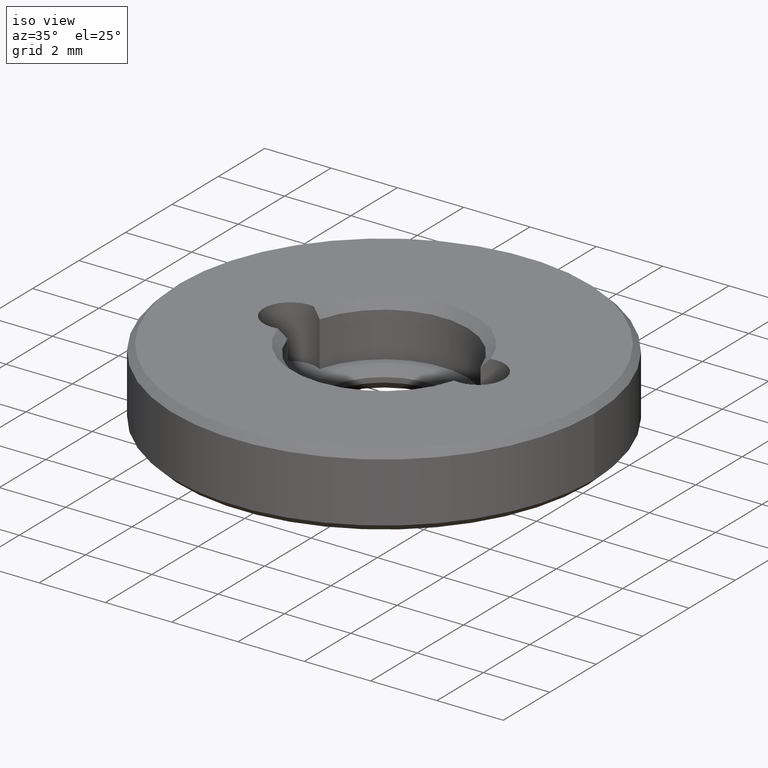
[diagram: clean part render]
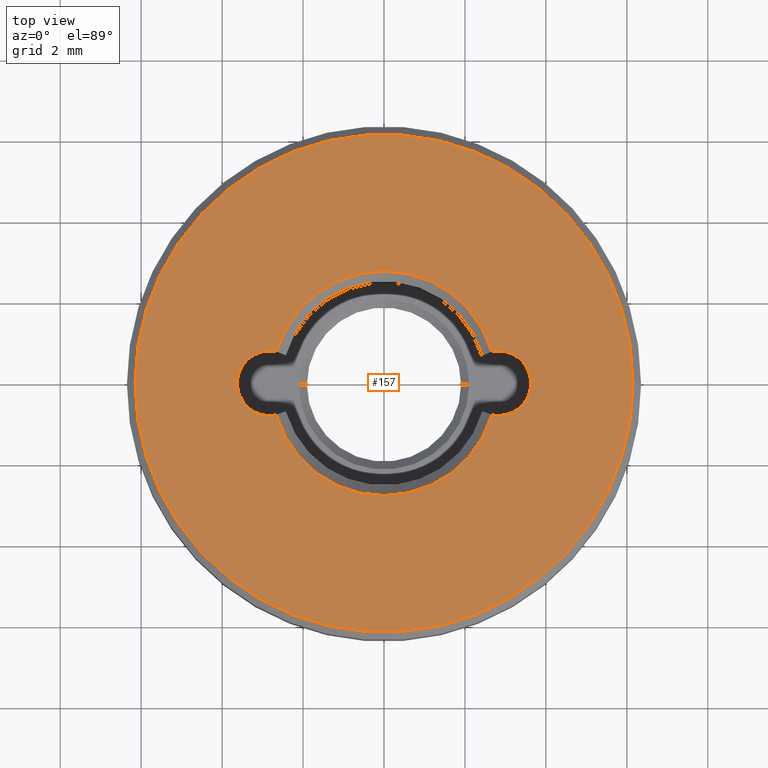
[diagram: tour spotlight — one face highlighted and labeled with its STEP entity id]
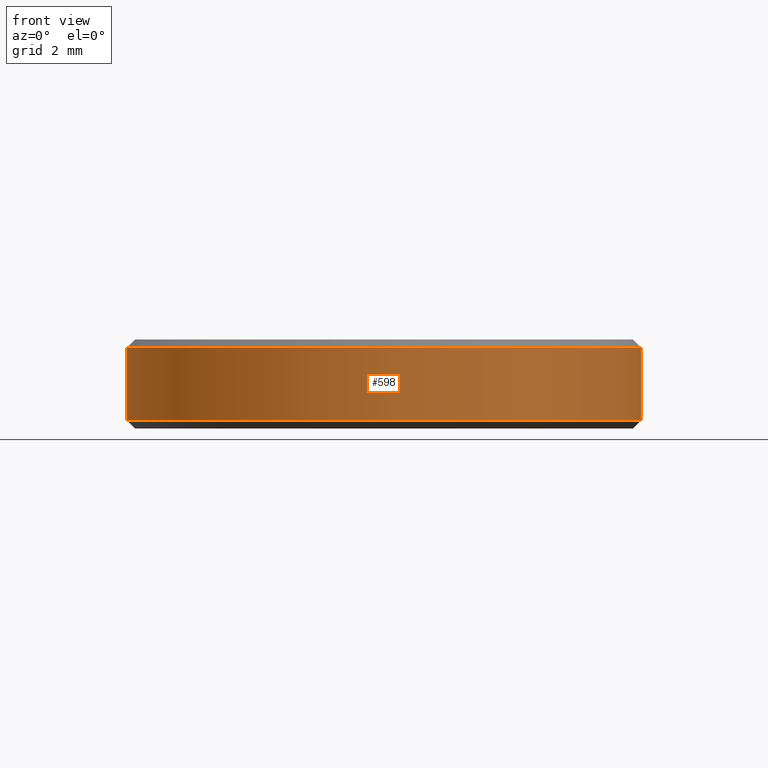
[diagram: tour spotlight — one face highlighted and labeled with its STEP entity id]
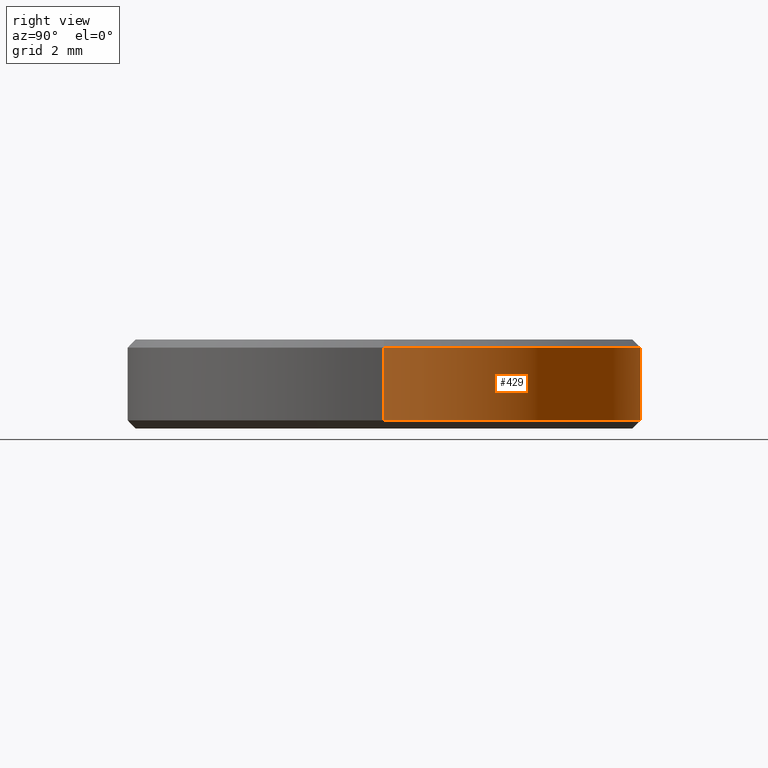
[diagram: tour spotlight — one face highlighted and labeled with its STEP entity id]
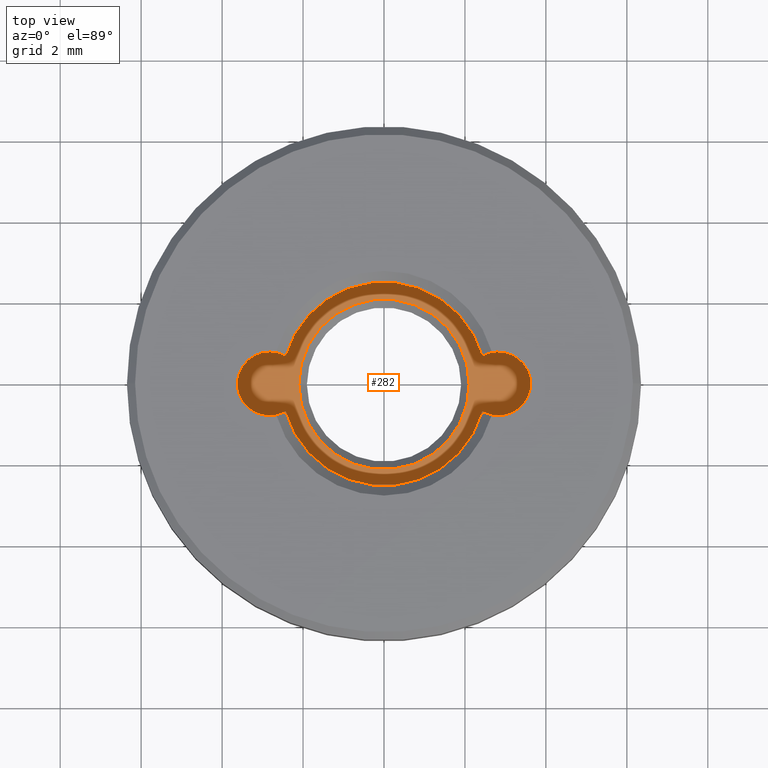
[diagram: tour spotlight — one face highlighted and labeled with its STEP entity id]
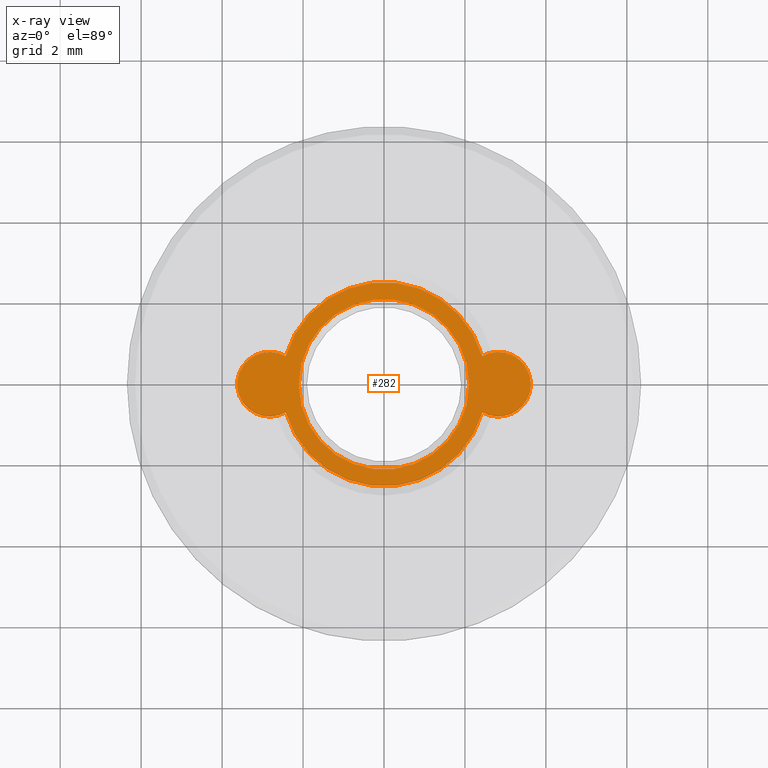
[diagram: x-ray of the same camera — body ghosted, this tour face saturated]
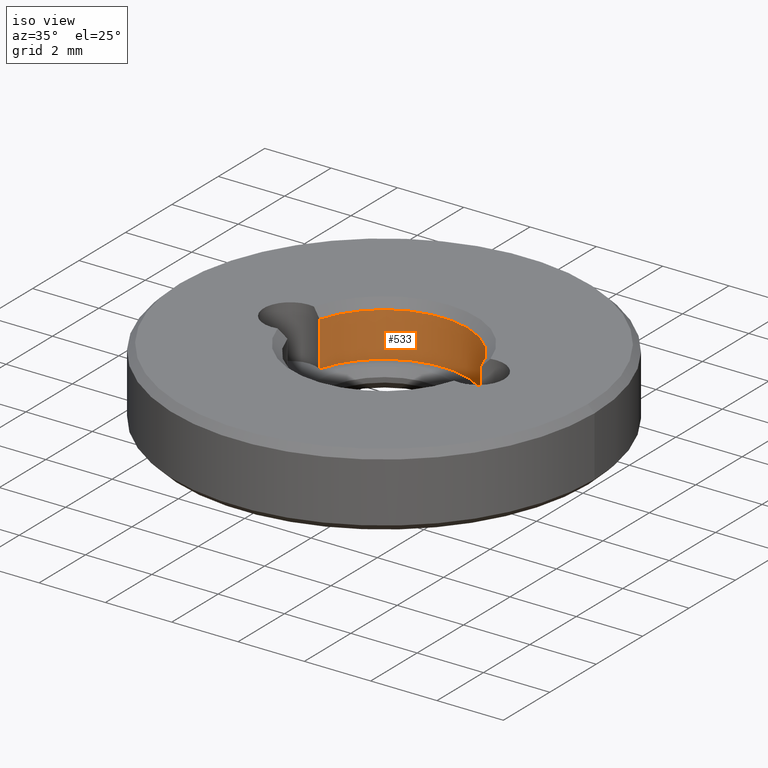
[diagram: tour spotlight — one face highlighted and labeled with its STEP entity id]
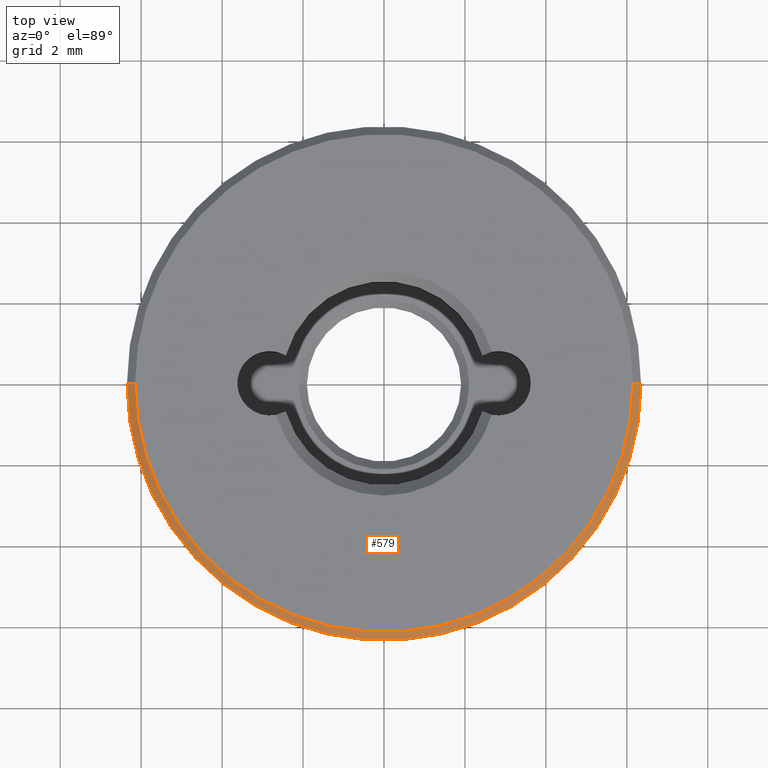
[diagram: tour spotlight — one face highlighted and labeled with its STEP entity id]
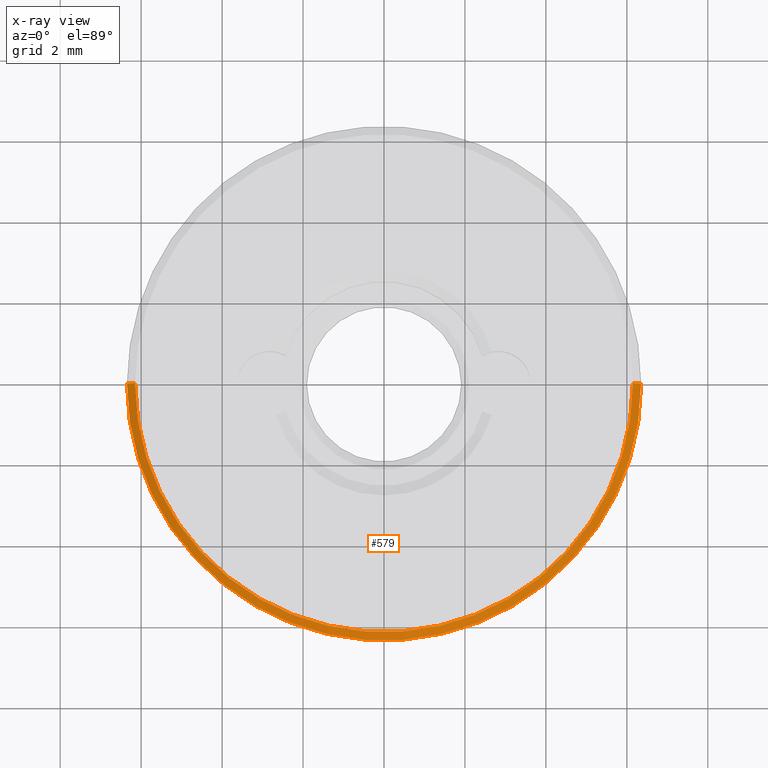
[diagram: x-ray of the same camera — body ghosted, this tour face saturated]
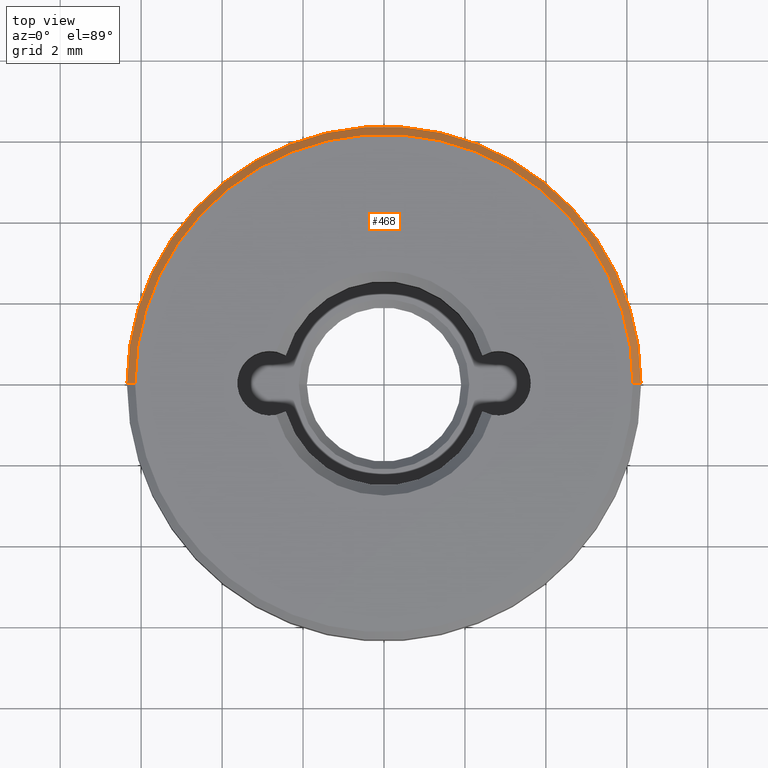
[diagram: tour spotlight — one face highlighted and labeled with its STEP entity id]
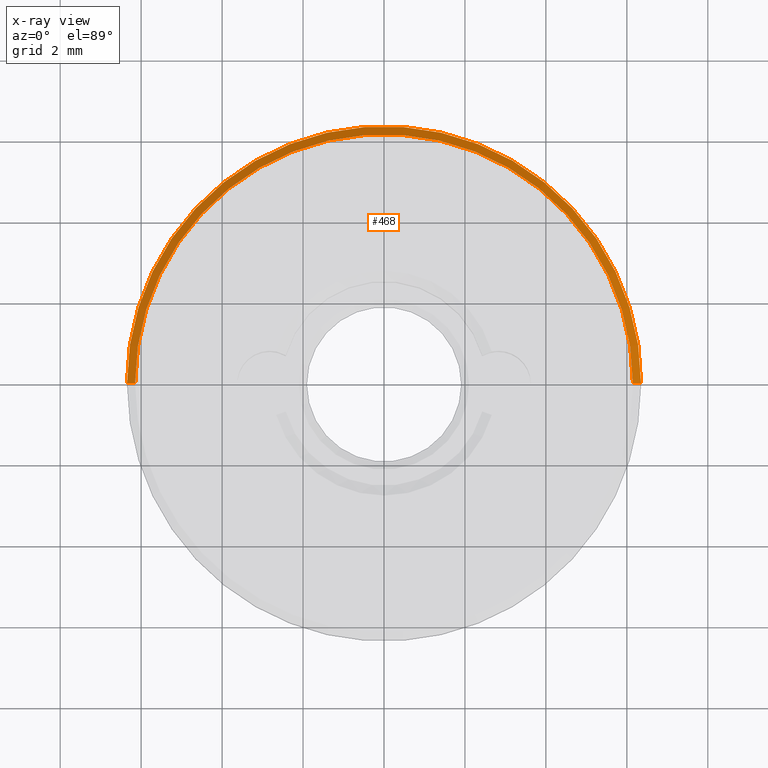
[diagram: x-ray of the same camera — body ghosted, this tour face saturated]
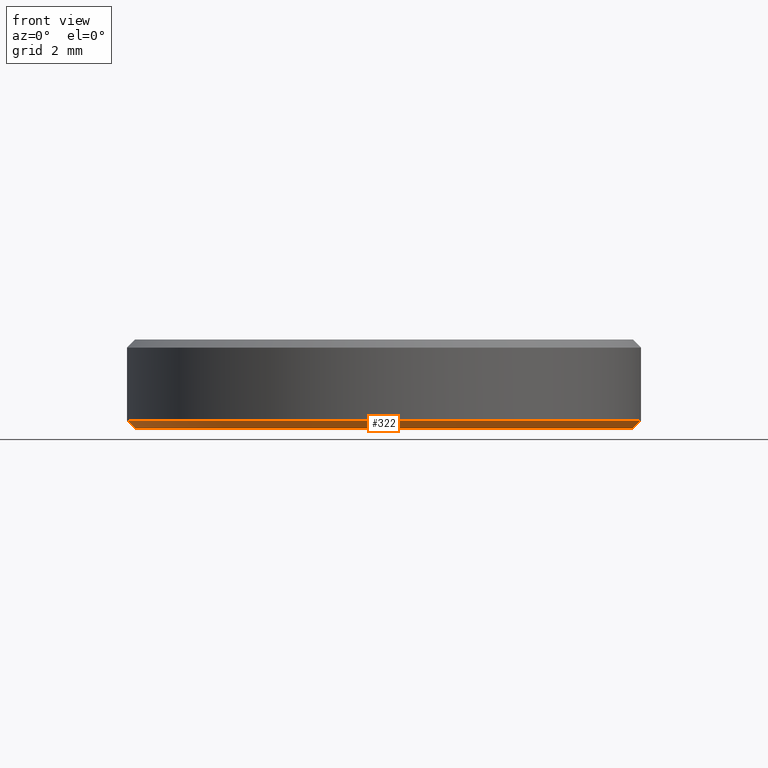
[diagram: tour spotlight — one face highlighted and labeled with its STEP entity id]
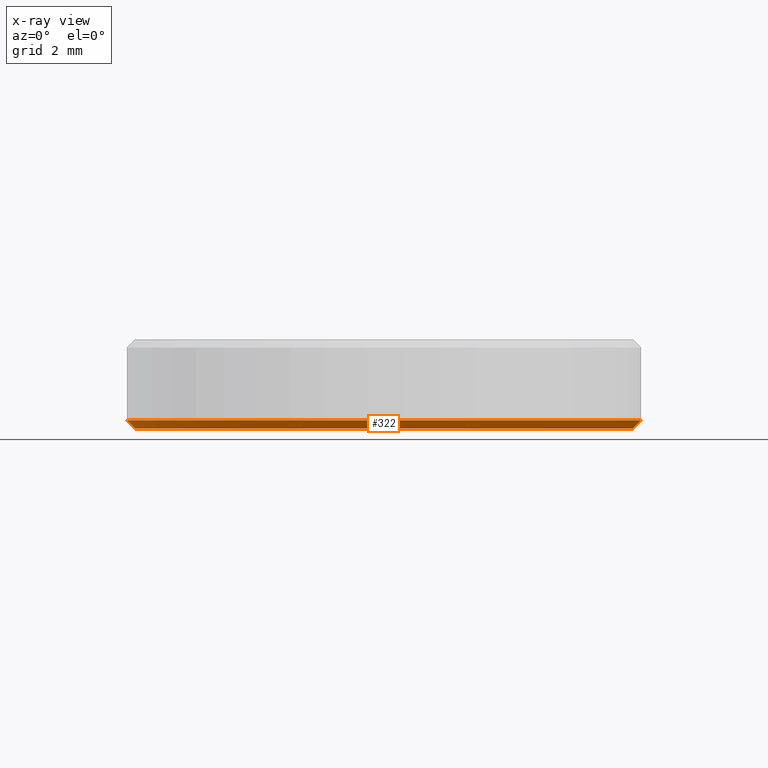
[diagram: x-ray of the same camera — body ghosted, this tour face saturated]
A machine part: a face-by-face anatomy tour. The part has 22 B-rep faces; the first image is the clean iso view, then the 8 largest visible faces are spotlighted one at a time (largest first), each with its STEP entity span.

Face 1 — top view, entity #157. In plain terms, the highlighted planar face has unit normal (0, 0, 1).
Definition (entity closure, byte-faithful):
#28 = CARTESIAN_POINT ( 'NONE',  ( 2.824999999999999734, 3.459627207591272175E-16, 2.200000000000000178 ) ) ;
#29 = ORIENTED_EDGE ( 'NONE', *, *, #311, .F. ) ;
#33 = DIRECTION ( 'NONE',  ( 0.000000000000000000, 0.000000000000000000, 1.000000000000000000 ) ) ;
#52 = CARTESIAN_POINT ( 'NONE',  ( 0.000000000000000000, 0.000000000000000000, 2.200000000000000178 ) ) ;
#54 = EDGE_CURVE ( 'NONE', #443, #603, #146, .T. ) ;
#104 = CARTESIAN_POINT ( 'NONE',  ( 0.000000000000000000, 0.000000000000000000, 2.200000000000000178 ) ) ;
#106 = DIRECTION ( 'NONE',  ( 1.000000000000000000, 0.000000000000000000, 0.000000000000000000 ) ) ;
#111 = CARTESIAN_POINT ( 'NONE',  ( 2.824999999999999734, 3.459627207591272175E-16, 2.200000000000000178 ) ) ;
#112 = CIRCLE ( 'NONE', #564, 0.8000000000000008216 ) ;
#115 = CIRCLE ( 'NONE', #706, 0.8000000000000008216 ) ;
#122 = EDGE_CURVE ( 'NONE', #620, #300, #217, .T. ) ;
#138 = CIRCLE ( 'NONE', #424, 2.775000000000001243 ) ;
#141 = ORIENTED_EDGE ( 'NONE', *, *, #54, .T. ) ;
#146 = CIRCLE ( 'NONE', #574, 2.775000000000001243 ) ;
#154 = DIRECTION ( 'NONE',  ( -0.000000000000000000, -0.000000000000000000, -1.000000000000000000 ) ) ;
#157 = ADVANCED_FACE ( 'NONE', ( #586, #474 ), #688, .T. ) ;
#162 = DIRECTION ( 'NONE',  ( 1.000000000000000000, 0.000000000000000000, 0.000000000000000000 ) ) ;
#173 = ORIENTED_EDGE ( 'NONE', *, *, #122, .T. ) ;
#191 = DIRECTION ( 'NONE',  ( 0.000000000000000000, 0.000000000000000000, 1.000000000000000000 ) ) ;
#192 = ORIENTED_EDGE ( 'NONE', *, *, #331, .T. ) ;
#207 = CIRCLE ( 'NONE', #597, 6.149999999999999467 ) ;
#209 = DIRECTION ( 'NONE',  ( 1.000000000000000000, 0.000000000000000000, 0.000000000000000000 ) ) ;
#215 = DIRECTION ( 'NONE',  ( 0.000000000000000000, 0.000000000000000000, 1.000000000000000000 ) ) ;
#217 = CIRCLE ( 'NONE', #700, 6.149999999999999467 ) ;
#223 = CARTESIAN_POINT ( 'NONE',  ( -2.662168141592921700, 0.7832533344248834295, 2.200000000000000178 ) ) ;
#227 = VERTEX_POINT ( 'NONE', #510 ) ;
#250 = DIRECTION ( 'NONE',  ( -1.000000000000000000, 0.000000000000000000, 0.000000000000000000 ) ) ;
#277 = ORIENTED_EDGE ( 'NONE', *, *, #409, .F. ) ;
#279 = CARTESIAN_POINT ( 'NONE',  ( -2.662168141592921700, -0.7832533344248840956, 2.200000000000000178 ) ) ;
#283 = EDGE_LOOP ( 'NONE', ( #173, #192 ) ) ;
#300 = VERTEX_POINT ( 'NONE', #302 ) ;
#302 = CARTESIAN_POINT ( 'NONE',  ( 6.149999999999999467, 7.654042494670954648E-16, 2.200000000000000178 ) ) ;
#308 = CARTESIAN_POINT ( 'NONE',  ( 0.000000000000000000, 0.000000000000000000, 2.200000000000000178 ) ) ;
#311 = EDGE_CURVE ( 'NONE', #227, #647, #349, .T. ) ;
#325 = ORIENTED_EDGE ( 'NONE', *, *, #622, .F. ) ;
#331 = EDGE_CURVE ( 'NONE', #300, #620, #207, .T. ) ;
#343 = DIRECTION ( 'NONE',  ( -1.000000000000000000, 0.000000000000000000, 0.000000000000000000 ) ) ;
#349 = CIRCLE ( 'NONE', #402, 0.8000000000000008216 ) ;
#355 = EDGE_CURVE ( 'NONE', #520, #647, #138, .T. ) ;
#379 = DIRECTION ( 'NONE',  ( 1.000000000000000000, 0.000000000000000000, 0.000000000000000000 ) ) ;
#402 = AXIS2_PLACEMENT_3D ( 'NONE', #28, #191, #250 ) ;
#409 = EDGE_CURVE ( 'NONE', #520, #603, #112, .T. ) ;
#424 = AXIS2_PLACEMENT_3D ( 'NONE', #634, #532, #162 ) ;
#428 = DIRECTION ( 'NONE',  ( 1.000000000000000000, 0.000000000000000000, -0.000000000000000000 ) ) ;
#443 = VERTEX_POINT ( 'NONE', #689 ) ;
#474 = FACE_OUTER_BOUND ( 'NONE', #283, .T. ) ;
#476 = CARTESIAN_POINT ( 'NONE',  ( -2.824999999999999734, -3.459627207591272175E-16, 2.200000000000000178 ) ) ;
#510 = CARTESIAN_POINT ( 'NONE',  ( 3.625000000000000444, 3.459627207591272175E-16, 2.200000000000000178 ) ) ;
#520 = VERTEX_POINT ( 'NONE', #223 ) ;
#526 = DIRECTION ( 'NONE',  ( 1.000000000000000000, 0.000000000000000000, 0.000000000000000000 ) ) ;
#532 = DIRECTION ( 'NONE',  ( -0.000000000000000000, -0.000000000000000000, -1.000000000000000000 ) ) ;
#540 = DIRECTION ( 'NONE',  ( 0.000000000000000000, 0.000000000000000000, 1.000000000000000000 ) ) ;
#555 = CARTESIAN_POINT ( 'NONE',  ( -6.149999999999999467, 0.000000000000000000, 2.200000000000000178 ) ) ;
#564 = AXIS2_PLACEMENT_3D ( 'NONE', #476, #540, #379 ) ;
#574 = AXIS2_PLACEMENT_3D ( 'NONE', #639, #154, #209 ) ;
#586 = FACE_BOUND ( 'NONE', #682, .T. ) ;
#597 = AXIS2_PLACEMENT_3D ( 'NONE', #308, #33, #526 ) ;
#603 = VERTEX_POINT ( 'NONE', #279 ) ;
#609 = AXIS2_PLACEMENT_3D ( 'NONE', #104, #691, #428 ) ;
#620 = VERTEX_POINT ( 'NONE', #555 ) ;
#622 = EDGE_CURVE ( 'NONE', #443, #227, #115, .T. ) ;
#634 = CARTESIAN_POINT ( 'NONE',  ( 0.000000000000000000, 0.000000000000000000, 2.200000000000000178 ) ) ;
#639 = CARTESIAN_POINT ( 'NONE',  ( 0.000000000000000000, 0.000000000000000000, 2.200000000000000178 ) ) ;
#647 = VERTEX_POINT ( 'NONE', #665 ) ;
#656 = DIRECTION ( 'NONE',  ( 0.000000000000000000, 0.000000000000000000, 1.000000000000000000 ) ) ;
#665 = CARTESIAN_POINT ( 'NONE',  ( 2.662168141592921700, 0.7832533344248840956, 2.200000000000000178 ) ) ;
#673 = ORIENTED_EDGE ( 'NONE', *, *, #355, .T. ) ;
#682 = EDGE_LOOP ( 'NONE', ( #325, #141, #277, #673, #29 ) ) ;
#688 = PLANE ( 'NONE',  #609 ) ;
#689 = CARTESIAN_POINT ( 'NONE',  ( 2.662168141592921700, -0.7832533344248834295, 2.200000000000000178 ) ) ;
#691 = DIRECTION ( 'NONE',  ( 0.000000000000000000, 0.000000000000000000, 1.000000000000000000 ) ) ;
#700 = AXIS2_PLACEMENT_3D ( 'NONE', #52, #215, #106 ) ;
#706 = AXIS2_PLACEMENT_3D ( 'NONE', #111, #656, #343 ) ;

Face 2 — front view, entity #598. In plain terms, the highlighted cylindrical surface (partial cylindrical patch) has radius 6.35 mm, axis along (-0, -0, -1).
Definition (entity closure, byte-faithful):
#6 = DIRECTION ( 'NONE',  ( 1.000000000000000000, 0.000000000000000000, 0.000000000000000000 ) ) ;
#8 = CARTESIAN_POINT ( 'NONE',  ( 0.000000000000000000, 0.000000000000000000, 0.1999999999999987899 ) ) ;
#25 = ORIENTED_EDGE ( 'NONE', *, *, #26, .T. ) ;
#26 = EDGE_CURVE ( 'NONE', #653, #522, #477, .T. ) ;
#48 = CARTESIAN_POINT ( 'NONE',  ( 6.349999999999999645, 7.776507174585692163E-16, 0.1999999999999987899 ) ) ;
#62 = DIRECTION ( 'NONE',  ( -1.000000000000000000, 0.000000000000000000, 0.000000000000000000 ) ) ;
#74 = EDGE_CURVE ( 'NONE', #243, #502, #93, .T. ) ;
#93 = LINE ( 'NONE', #635, #347 ) ;
#119 = CYLINDRICAL_SURFACE ( 'NONE', #232, 6.349999999999999645 ) ;
#136 = EDGE_LOOP ( 'NONE', ( #294, #542, #25, #194 ) ) ;
#139 = AXIS2_PLACEMENT_3D ( 'NONE', #8, #166, #386 ) ;
#156 = VECTOR ( 'NONE', #324, 1000.000000000000000 ) ;
#166 = DIRECTION ( 'NONE',  ( -0.000000000000000000, -0.000000000000000000, 1.000000000000000000 ) ) ;
#167 = CARTESIAN_POINT ( 'NONE',  ( 6.349999999999999645, 7.776507174585692163E-16, 2.000000000000000444 ) ) ;
#185 = CARTESIAN_POINT ( 'NONE',  ( -6.349999999999999645, 0.000000000000000000, 2.000000000000000444 ) ) ;
#194 = ORIENTED_EDGE ( 'NONE', *, *, #560, .T. ) ;
#197 = AXIS2_PLACEMENT_3D ( 'NONE', #450, #498, #6 ) ;
#232 = AXIS2_PLACEMENT_3D ( 'NONE', #592, #543, #62 ) ;
#238 = EDGE_CURVE ( 'NONE', #243, #653, #611, .T. ) ;
#243 = VERTEX_POINT ( 'NONE', #167 ) ;
#294 = ORIENTED_EDGE ( 'NONE', *, *, #74, .F. ) ;
#324 = DIRECTION ( 'NONE',  ( -0.000000000000000000, -0.000000000000000000, -1.000000000000000000 ) ) ;
#337 = CARTESIAN_POINT ( 'NONE',  ( -6.349999999999999645, 0.000000000000000000, 0.1999999999999987899 ) ) ;
#347 = VECTOR ( 'NONE', #590, 1000.000000000000000 ) ;
#380 = CARTESIAN_POINT ( 'NONE',  ( -6.349999999999999645, 0.000000000000000000, 2.200000000000000178 ) ) ;
#386 = DIRECTION ( 'NONE',  ( 1.000000000000000000, 0.000000000000000000, 0.000000000000000000 ) ) ;
#450 = CARTESIAN_POINT ( 'NONE',  ( 0.000000000000000000, 0.000000000000000000, 2.000000000000000444 ) ) ;
#477 = LINE ( 'NONE', #380, #156 ) ;
#498 = DIRECTION ( 'NONE',  ( 0.000000000000000000, 0.000000000000000000, -1.000000000000000000 ) ) ;
#502 = VERTEX_POINT ( 'NONE', #48 ) ;
#522 = VERTEX_POINT ( 'NONE', #337 ) ;
#542 = ORIENTED_EDGE ( 'NONE', *, *, #238, .T. ) ;
#543 = DIRECTION ( 'NONE',  ( -0.000000000000000000, -0.000000000000000000, -1.000000000000000000 ) ) ;
#560 = EDGE_CURVE ( 'NONE', #522, #502, #588, .T. ) ;
#588 = CIRCLE ( 'NONE', #139, 6.349999999999999645 ) ;
#590 = DIRECTION ( 'NONE',  ( -0.000000000000000000, -0.000000000000000000, -1.000000000000000000 ) ) ;
#592 = CARTESIAN_POINT ( 'NONE',  ( 0.000000000000000000, 0.000000000000000000, 2.200000000000000178 ) ) ;
#598 = ADVANCED_FACE ( 'NONE', ( #649 ), #119, .T. ) ;
#611 = CIRCLE ( 'NONE', #197, 6.349999999999999645 ) ;
#635 = CARTESIAN_POINT ( 'NONE',  ( 6.349999999999999645, 7.776507174585692163E-16, 2.200000000000000178 ) ) ;
#649 = FACE_OUTER_BOUND ( 'NONE', #136, .T. ) ;
#653 = VERTEX_POINT ( 'NONE', #185 ) ;

Face 3 — right view, entity #429. In plain terms, the highlighted cylindrical surface (partial cylindrical patch) has radius 6.35 mm, axis along (-0, -0, -1).
Definition (entity closure, byte-faithful):
#20 = DIRECTION ( 'NONE',  ( 0.000000000000000000, 0.000000000000000000, -1.000000000000000000 ) ) ;
#26 = EDGE_CURVE ( 'NONE', #653, #522, #477, .T. ) ;
#48 = CARTESIAN_POINT ( 'NONE',  ( 6.349999999999999645, 7.776507174585692163E-16, 0.1999999999999987899 ) ) ;
#65 = ORIENTED_EDGE ( 'NONE', *, *, #292, .T. ) ;
#74 = EDGE_CURVE ( 'NONE', #243, #502, #93, .T. ) ;
#80 = DIRECTION ( 'NONE',  ( 1.000000000000000000, 0.000000000000000000, 0.000000000000000000 ) ) ;
#93 = LINE ( 'NONE', #635, #347 ) ;
#105 = DIRECTION ( 'NONE',  ( -0.000000000000000000, -0.000000000000000000, -1.000000000000000000 ) ) ;
#156 = VECTOR ( 'NONE', #324, 1000.000000000000000 ) ;
#167 = CARTESIAN_POINT ( 'NONE',  ( 6.349999999999999645, 7.776507174585692163E-16, 2.000000000000000444 ) ) ;
#185 = CARTESIAN_POINT ( 'NONE',  ( -6.349999999999999645, 0.000000000000000000, 2.000000000000000444 ) ) ;
#243 = VERTEX_POINT ( 'NONE', #167 ) ;
#256 = AXIS2_PLACEMENT_3D ( 'NONE', #625, #20, #80 ) ;
#260 = DIRECTION ( 'NONE',  ( -1.000000000000000000, 0.000000000000000000, 0.000000000000000000 ) ) ;
#291 = CIRCLE ( 'NONE', #505, 6.349999999999999645 ) ;
#292 = EDGE_CURVE ( 'NONE', #653, #243, #413, .T. ) ;
#320 = DIRECTION ( 'NONE',  ( 1.000000000000000000, 0.000000000000000000, 0.000000000000000000 ) ) ;
#324 = DIRECTION ( 'NONE',  ( -0.000000000000000000, -0.000000000000000000, -1.000000000000000000 ) ) ;
#335 = ORIENTED_EDGE ( 'NONE', *, *, #74, .T. ) ;
#337 = CARTESIAN_POINT ( 'NONE',  ( -6.349999999999999645, 0.000000000000000000, 0.1999999999999987899 ) ) ;
#347 = VECTOR ( 'NONE', #590, 1000.000000000000000 ) ;
#374 = CYLINDRICAL_SURFACE ( 'NONE', #514, 6.349999999999999645 ) ;
#380 = CARTESIAN_POINT ( 'NONE',  ( -6.349999999999999645, 0.000000000000000000, 2.200000000000000178 ) ) ;
#404 = ORIENTED_EDGE ( 'NONE', *, *, #26, .F. ) ;
#413 = CIRCLE ( 'NONE', #256, 6.349999999999999645 ) ;
#429 = ADVANCED_FACE ( 'NONE', ( #583 ), #374, .T. ) ;
#433 = CARTESIAN_POINT ( 'NONE',  ( 0.000000000000000000, 0.000000000000000000, 2.200000000000000178 ) ) ;
#477 = LINE ( 'NONE', #380, #156 ) ;
#488 = EDGE_CURVE ( 'NONE', #502, #522, #291, .T. ) ;
#502 = VERTEX_POINT ( 'NONE', #48 ) ;
#505 = AXIS2_PLACEMENT_3D ( 'NONE', #687, #628, #320 ) ;
#513 = EDGE_LOOP ( 'NONE', ( #65, #335, #703, #404 ) ) ;
#514 = AXIS2_PLACEMENT_3D ( 'NONE', #433, #105, #260 ) ;
#522 = VERTEX_POINT ( 'NONE', #337 ) ;
#583 = FACE_OUTER_BOUND ( 'NONE', #513, .T. ) ;
#590 = DIRECTION ( 'NONE',  ( -0.000000000000000000, -0.000000000000000000, -1.000000000000000000 ) ) ;
#625 = CARTESIAN_POINT ( 'NONE',  ( 0.000000000000000000, 0.000000000000000000, 2.000000000000000444 ) ) ;
#628 = DIRECTION ( 'NONE',  ( -0.000000000000000000, -0.000000000000000000, 1.000000000000000000 ) ) ;
#635 = CARTESIAN_POINT ( 'NONE',  ( 6.349999999999999645, 7.776507174585692163E-16, 2.200000000000000178 ) ) ;
#653 = VERTEX_POINT ( 'NONE', #185 ) ;
#687 = CARTESIAN_POINT ( 'NONE',  ( 0.000000000000000000, 0.000000000000000000, 0.1999999999999987899 ) ) ;
#703 = ORIENTED_EDGE ( 'NONE', *, *, #488, .T. ) ;

Face 4 — top view, entity #282. An x-ray twin of the same camera follows (body ghosted, this face saturated) — the face is partly hidden behind the body. In plain terms, the highlighted planar face has unit normal (0, 0, 1).
Definition (entity closure, byte-faithful):
#13 = DIRECTION ( 'NONE',  ( 1.000000000000000000, 0.000000000000000000, 0.000000000000000000 ) ) ;
#14 = ORIENTED_EDGE ( 'NONE', *, *, #179, .T. ) ;
#16 = DIRECTION ( 'NONE',  ( 1.000000000000000000, 0.000000000000000000, 0.000000000000000000 ) ) ;
#19 = DIRECTION ( 'NONE',  ( -0.000000000000000000, -0.000000000000000000, -1.000000000000000000 ) ) ;
#38 = VERTEX_POINT ( 'NONE', #262 ) ;
#56 = VERTEX_POINT ( 'NONE', #698 ) ;
#81 = VERTEX_POINT ( 'NONE', #366 ) ;
#90 = CIRCLE ( 'NONE', #127, 0.8000000000000008216 ) ;
#97 = DIRECTION ( 'NONE',  ( 1.000000000000000000, 0.000000000000000000, 0.000000000000000000 ) ) ;
#107 = ORIENTED_EDGE ( 'NONE', *, *, #206, .F. ) ;
#125 = DIRECTION ( 'NONE',  ( 0.000000000000000000, 0.000000000000000000, 1.000000000000000000 ) ) ;
#127 = AXIS2_PLACEMENT_3D ( 'NONE', #235, #339, #552 ) ;
#129 = ORIENTED_EDGE ( 'NONE', *, *, #655, .F. ) ;
#131 = DIRECTION ( 'NONE',  ( 1.000000000000000000, 0.000000000000000000, 0.000000000000000000 ) ) ;
#174 = CARTESIAN_POINT ( 'NONE',  ( 2.427654867256636706, -0.6943463440424815225, 0.6000000000000003109 ) ) ;
#179 = EDGE_CURVE ( 'NONE', #607, #38, #490, .T. ) ;
#184 = AXIS2_PLACEMENT_3D ( 'NONE', #646, #125, #13 ) ;
#190 = AXIS2_PLACEMENT_3D ( 'NONE', #297, #19, #515 ) ;
#206 = EDGE_CURVE ( 'NONE', #303, #516, #90, .T. ) ;
#226 = DIRECTION ( 'NONE',  ( -0.000000000000000000, -0.000000000000000000, -1.000000000000000000 ) ) ;
#229 = EDGE_CURVE ( 'NONE', #81, #38, #587, .T. ) ;
#235 = CARTESIAN_POINT ( 'NONE',  ( 2.824999999999999734, 3.459627207591272175E-16, 0.6000000000000003109 ) ) ;
#244 = DIRECTION ( 'NONE',  ( -0.000000000000000000, -0.000000000000000000, -1.000000000000000000 ) ) ;
#247 = FACE_BOUND ( 'NONE', #573, .T. ) ;
#255 = ORIENTED_EDGE ( 'NONE', *, *, #451, .T. ) ;
#262 = CARTESIAN_POINT ( 'NONE',  ( -2.427654867256636706, 0.6943463440424815225, 0.6000000000000003109 ) ) ;
#263 = CARTESIAN_POINT ( 'NONE',  ( 0.000000000000000000, 0.000000000000000000, 0.6000000000000000888 ) ) ;
#265 = AXIS2_PLACEMENT_3D ( 'NONE', #276, #226, #660 ) ;
#276 = CARTESIAN_POINT ( 'NONE',  ( 0.000000000000000000, 0.000000000000000000, 0.6000000000000000888 ) ) ;
#280 = CARTESIAN_POINT ( 'NONE',  ( -2.824999999999999734, -3.459627207591272175E-16, 0.6000000000000003109 ) ) ;
#282 = ADVANCED_FACE ( 'NONE', ( #247, #512 ), #671, .T. ) ;
#285 = DIRECTION ( 'NONE',  ( -0.000000000000000000, -0.000000000000000000, -1.000000000000000000 ) ) ;
#297 = CARTESIAN_POINT ( 'NONE',  ( 0.000000000000000000, 0.000000000000000000, 0.6000000000000000888 ) ) ;
#298 = CARTESIAN_POINT ( 'NONE',  ( 0.000000000000000000, 0.000000000000000000, 0.6000000000000000888 ) ) ;
#303 = VERTEX_POINT ( 'NONE', #359 ) ;
#306 = DIRECTION ( 'NONE',  ( 1.000000000000000000, 0.000000000000000000, -0.000000000000000000 ) ) ;
#310 = AXIS2_PLACEMENT_3D ( 'NONE', #280, #285, #16 ) ;
#314 = CARTESIAN_POINT ( 'NONE',  ( -2.104999999999999094, 2.577881512205177847E-16, 0.6000000000000000888 ) ) ;
#323 = DIRECTION ( 'NONE',  ( 0.000000000000000000, 0.000000000000000000, 1.000000000000000000 ) ) ;
#339 = DIRECTION ( 'NONE',  ( -0.000000000000000000, -0.000000000000000000, -1.000000000000000000 ) ) ;
#352 = EDGE_LOOP ( 'NONE', ( #255, #107, #129, #14, #563 ) ) ;
#359 = CARTESIAN_POINT ( 'NONE',  ( 3.625000000000000444, 3.459627207591272175E-16, 0.6000000000000003109 ) ) ;
#361 = ORIENTED_EDGE ( 'NONE', *, *, #524, .T. ) ;
#366 = CARTESIAN_POINT ( 'NONE',  ( -2.427654867256636706, -0.6943463440424822997, 0.6000000000000003109 ) ) ;
#377 = AXIS2_PLACEMENT_3D ( 'NONE', #298, #416, #306 ) ;
#389 = AXIS2_PLACEMENT_3D ( 'NONE', #263, #323, #97 ) ;
#408 = VERTEX_POINT ( 'NONE', #314 ) ;
#416 = DIRECTION ( 'NONE',  ( 0.000000000000000000, 0.000000000000000000, 1.000000000000000000 ) ) ;
#451 = EDGE_CURVE ( 'NONE', #81, #516, #633, .T. ) ;
#479 = CIRCLE ( 'NONE', #265, 2.104999999999999094 ) ;
#490 = CIRCLE ( 'NONE', #184, 2.524999999999999911 ) ;
#495 = CIRCLE ( 'NONE', #190, 2.104999999999999094 ) ;
#512 = FACE_OUTER_BOUND ( 'NONE', #352, .T. ) ;
#515 = DIRECTION ( 'NONE',  ( 1.000000000000000000, 0.000000000000000000, 0.000000000000000000 ) ) ;
#516 = VERTEX_POINT ( 'NONE', #174 ) ;
#524 = EDGE_CURVE ( 'NONE', #408, #56, #479, .T. ) ;
#546 = CARTESIAN_POINT ( 'NONE',  ( 2.427654867256636706, 0.6943463440424822997, 0.6000000000000003109 ) ) ;
#552 = DIRECTION ( 'NONE',  ( 1.000000000000000000, 0.000000000000000000, 0.000000000000000000 ) ) ;
#563 = ORIENTED_EDGE ( 'NONE', *, *, #229, .F. ) ;
#573 = EDGE_LOOP ( 'NONE', ( #662, #361 ) ) ;
#587 = CIRCLE ( 'NONE', #310, 0.8000000000000008216 ) ;
#600 = CIRCLE ( 'NONE', #637, 0.8000000000000008216 ) ;
#607 = VERTEX_POINT ( 'NONE', #546 ) ;
#633 = CIRCLE ( 'NONE', #389, 2.524999999999999911 ) ;
#637 = AXIS2_PLACEMENT_3D ( 'NONE', #679, #244, #131 ) ;
#646 = CARTESIAN_POINT ( 'NONE',  ( 0.000000000000000000, 0.000000000000000000, 0.6000000000000000888 ) ) ;
#655 = EDGE_CURVE ( 'NONE', #607, #303, #600, .T. ) ;
#660 = DIRECTION ( 'NONE',  ( 1.000000000000000000, 0.000000000000000000, 0.000000000000000000 ) ) ;
#662 = ORIENTED_EDGE ( 'NONE', *, *, #678, .T. ) ;
#671 = PLANE ( 'NONE',  #377 ) ;
#678 = EDGE_CURVE ( 'NONE', #56, #408, #495, .T. ) ;
#679 = CARTESIAN_POINT ( 'NONE',  ( 2.824999999999999734, 3.459627207591272175E-16, 0.6000000000000003109 ) ) ;
#698 = CARTESIAN_POINT ( 'NONE',  ( 2.104999999999999094, 0.000000000000000000, 0.6000000000000000888 ) ) ;

Face 5 — iso view, entity #533. In plain terms, the highlighted cylindrical surface (partial cylindrical patch) has radius 2.525 mm, axis along (-0, -0, 1).
Definition (entity closure, byte-faithful):
#13 = DIRECTION ( 'NONE',  ( 1.000000000000000000, 0.000000000000000000, 0.000000000000000000 ) ) ;
#17 = VERTEX_POINT ( 'NONE', #163 ) ;
#37 = EDGE_CURVE ( 'NONE', #440, #17, #554, .T. ) ;
#38 = VERTEX_POINT ( 'NONE', #262 ) ;
#49 = CARTESIAN_POINT ( 'NONE',  ( -2.427654867256636706, 0.6943463440424816335, 1.400000000000000133 ) ) ;
#63 = AXIS2_PLACEMENT_3D ( 'NONE', #212, #205, #650 ) ;
#95 = VECTOR ( 'NONE', #567, 1000.000000000000000 ) ;
#125 = DIRECTION ( 'NONE',  ( 0.000000000000000000, 0.000000000000000000, 1.000000000000000000 ) ) ;
#163 = CARTESIAN_POINT ( 'NONE',  ( -2.427654867256636706, 0.6943463440424815225, 1.949999999999998623 ) ) ;
#165 = EDGE_CURVE ( 'NONE', #17, #38, #321, .T. ) ;
#176 = AXIS2_PLACEMENT_3D ( 'NONE', #397, #663, #348 ) ;
#177 = EDGE_LOOP ( 'NONE', ( #569, #466, #239, #296 ) ) ;
#179 = EDGE_CURVE ( 'NONE', #607, #38, #490, .T. ) ;
#182 = FACE_OUTER_BOUND ( 'NONE', #177, .T. ) ;
#184 = AXIS2_PLACEMENT_3D ( 'NONE', #646, #125, #13 ) ;
#205 = DIRECTION ( 'NONE',  ( 0.000000000000000000, 0.000000000000000000, 1.000000000000000000 ) ) ;
#212 = CARTESIAN_POINT ( 'NONE',  ( 0.000000000000000000, 0.000000000000000000, 1.949999999999998623 ) ) ;
#239 = ORIENTED_EDGE ( 'NONE', *, *, #37, .T. ) ;
#262 = CARTESIAN_POINT ( 'NONE',  ( -2.427654867256636706, 0.6943463440424815225, 0.6000000000000003109 ) ) ;
#270 = DIRECTION ( 'NONE',  ( 0.000000000000000000, 0.000000000000000000, -1.000000000000000000 ) ) ;
#296 = ORIENTED_EDGE ( 'NONE', *, *, #165, .T. ) ;
#305 = CARTESIAN_POINT ( 'NONE',  ( 2.427654867256636706, 0.6943463440424824107, 1.400000000000000133 ) ) ;
#321 = LINE ( 'NONE', #49, #400 ) ;
#348 = DIRECTION ( 'NONE',  ( 1.000000000000000000, 0.000000000000000000, 0.000000000000000000 ) ) ;
#397 = CARTESIAN_POINT ( 'NONE',  ( 0.000000000000000000, 0.000000000000000000, 0.6000000000000000888 ) ) ;
#400 = VECTOR ( 'NONE', #270, 1000.000000000000000 ) ;
#420 = CARTESIAN_POINT ( 'NONE',  ( 2.427654867256636706, 0.6943463440424820776, 1.949999999999998623 ) ) ;
#440 = VERTEX_POINT ( 'NONE', #420 ) ;
#442 = CYLINDRICAL_SURFACE ( 'NONE', #176, 2.524999999999999911 ) ;
#466 = ORIENTED_EDGE ( 'NONE', *, *, #668, .T. ) ;
#490 = CIRCLE ( 'NONE', #184, 2.524999999999999911 ) ;
#521 = LINE ( 'NONE', #305, #95 ) ;
#533 = ADVANCED_FACE ( 'NONE', ( #182 ), #442, .F. ) ;
#546 = CARTESIAN_POINT ( 'NONE',  ( 2.427654867256636706, 0.6943463440424822997, 0.6000000000000003109 ) ) ;
#554 = CIRCLE ( 'NONE', #63, 2.524999999999999911 ) ;
#567 = DIRECTION ( 'NONE',  ( -0.000000000000000000, -0.000000000000000000, 1.000000000000000000 ) ) ;
#569 = ORIENTED_EDGE ( 'NONE', *, *, #179, .F. ) ;
#607 = VERTEX_POINT ( 'NONE', #546 ) ;
#646 = CARTESIAN_POINT ( 'NONE',  ( 0.000000000000000000, 0.000000000000000000, 0.6000000000000000888 ) ) ;
#650 = DIRECTION ( 'NONE',  ( 1.000000000000000000, 0.000000000000000000, 0.000000000000000000 ) ) ;
#663 = DIRECTION ( 'NONE',  ( -0.000000000000000000, -0.000000000000000000, 1.000000000000000000 ) ) ;
#668 = EDGE_CURVE ( 'NONE', #607, #440, #521, .T. ) ;

Face 6 — top view, entity #579. An x-ray twin of the same camera follows (body ghosted, this face saturated) — the face is partly hidden behind the body. In plain terms, the highlighted conical surface has half-angle 45 deg.
Definition (entity closure, byte-faithful):
#6 = DIRECTION ( 'NONE',  ( 1.000000000000000000, 0.000000000000000000, 0.000000000000000000 ) ) ;
#52 = CARTESIAN_POINT ( 'NONE',  ( 0.000000000000000000, 0.000000000000000000, 2.200000000000000178 ) ) ;
#85 = EDGE_CURVE ( 'NONE', #620, #653, #536, .T. ) ;
#103 = CONICAL_SURFACE ( 'NONE', #198, 6.149999999999999467, 0.7853981633974503884 ) ;
#106 = DIRECTION ( 'NONE',  ( 1.000000000000000000, 0.000000000000000000, 0.000000000000000000 ) ) ;
#122 = EDGE_CURVE ( 'NONE', #620, #300, #217, .T. ) ;
#145 = LINE ( 'NONE', #644, #658 ) ;
#158 = DIRECTION ( 'NONE',  ( 0.7071067811865490160, 8.659560562354950115E-17, -0.7071067811865459074 ) ) ;
#167 = CARTESIAN_POINT ( 'NONE',  ( 6.349999999999999645, 7.776507174585692163E-16, 2.000000000000000444 ) ) ;
#185 = CARTESIAN_POINT ( 'NONE',  ( -6.349999999999999645, 0.000000000000000000, 2.000000000000000444 ) ) ;
#197 = AXIS2_PLACEMENT_3D ( 'NONE', #450, #498, #6 ) ;
#198 = AXIS2_PLACEMENT_3D ( 'NONE', #438, #492, #444 ) ;
#215 = DIRECTION ( 'NONE',  ( 0.000000000000000000, 0.000000000000000000, 1.000000000000000000 ) ) ;
#217 = CIRCLE ( 'NONE', #700, 6.149999999999999467 ) ;
#230 = FACE_OUTER_BOUND ( 'NONE', #453, .T. ) ;
#238 = EDGE_CURVE ( 'NONE', #243, #653, #611, .T. ) ;
#243 = VERTEX_POINT ( 'NONE', #167 ) ;
#275 = VECTOR ( 'NONE', #372, 1000.000000000000000 ) ;
#288 = ORIENTED_EDGE ( 'NONE', *, *, #375, .F. ) ;
#300 = VERTEX_POINT ( 'NONE', #302 ) ;
#302 = CARTESIAN_POINT ( 'NONE',  ( 6.149999999999999467, 7.654042494670954648E-16, 2.200000000000000178 ) ) ;
#336 = ORIENTED_EDGE ( 'NONE', *, *, #238, .F. ) ;
#372 = DIRECTION ( 'NONE',  ( -0.7071067811865490160, 0.000000000000000000, -0.7071067811865459074 ) ) ;
#375 = EDGE_CURVE ( 'NONE', #300, #243, #145, .T. ) ;
#388 = ORIENTED_EDGE ( 'NONE', *, *, #122, .F. ) ;
#438 = CARTESIAN_POINT ( 'NONE',  ( 0.000000000000000000, 0.000000000000000000, 2.200000000000000178 ) ) ;
#444 = DIRECTION ( 'NONE',  ( -1.000000000000000000, 0.000000000000000000, 0.000000000000000000 ) ) ;
#450 = CARTESIAN_POINT ( 'NONE',  ( 0.000000000000000000, 0.000000000000000000, 2.000000000000000444 ) ) ;
#453 = EDGE_LOOP ( 'NONE', ( #288, #388, #669, #336 ) ) ;
#492 = DIRECTION ( 'NONE',  ( 0.000000000000000000, 0.000000000000000000, -1.000000000000000000 ) ) ;
#498 = DIRECTION ( 'NONE',  ( 0.000000000000000000, 0.000000000000000000, -1.000000000000000000 ) ) ;
#531 = CARTESIAN_POINT ( 'NONE',  ( -6.149999999999999467, 0.000000000000000000, 2.200000000000000178 ) ) ;
#536 = LINE ( 'NONE', #531, #275 ) ;
#555 = CARTESIAN_POINT ( 'NONE',  ( -6.149999999999999467, 0.000000000000000000, 2.200000000000000178 ) ) ;
#579 = ADVANCED_FACE ( 'NONE', ( #230 ), #103, .T. ) ;
#611 = CIRCLE ( 'NONE', #197, 6.349999999999999645 ) ;
#620 = VERTEX_POINT ( 'NONE', #555 ) ;
#644 = CARTESIAN_POINT ( 'NONE',  ( 6.149999999999999467, 7.531577814756219106E-16, 2.200000000000000178 ) ) ;
#653 = VERTEX_POINT ( 'NONE', #185 ) ;
#658 = VECTOR ( 'NONE', #158, 1000.000000000000000 ) ;
#669 = ORIENTED_EDGE ( 'NONE', *, *, #85, .T. ) ;
#700 = AXIS2_PLACEMENT_3D ( 'NONE', #52, #215, #106 ) ;

Face 7 — top view, entity #468. An x-ray twin of the same camera follows (body ghosted, this face saturated) — the face is partly hidden behind the body. In plain terms, the highlighted conical surface has half-angle 45 deg.
Definition (entity closure, byte-faithful):
#20 = DIRECTION ( 'NONE',  ( 0.000000000000000000, 0.000000000000000000, -1.000000000000000000 ) ) ;
#33 = DIRECTION ( 'NONE',  ( 0.000000000000000000, 0.000000000000000000, 1.000000000000000000 ) ) ;
#77 = CONICAL_SURFACE ( 'NONE', #478, 6.149999999999999467, 0.7853981633974503884 ) ;
#80 = DIRECTION ( 'NONE',  ( 1.000000000000000000, 0.000000000000000000, 0.000000000000000000 ) ) ;
#85 = EDGE_CURVE ( 'NONE', #620, #653, #536, .T. ) ;
#99 = DIRECTION ( 'NONE',  ( -1.000000000000000000, 0.000000000000000000, 0.000000000000000000 ) ) ;
#145 = LINE ( 'NONE', #644, #658 ) ;
#153 = DIRECTION ( 'NONE',  ( 0.000000000000000000, 0.000000000000000000, -1.000000000000000000 ) ) ;
#158 = DIRECTION ( 'NONE',  ( 0.7071067811865490160, 8.659560562354950115E-17, -0.7071067811865459074 ) ) ;
#167 = CARTESIAN_POINT ( 'NONE',  ( 6.349999999999999645, 7.776507174585692163E-16, 2.000000000000000444 ) ) ;
#185 = CARTESIAN_POINT ( 'NONE',  ( -6.349999999999999645, 0.000000000000000000, 2.000000000000000444 ) ) ;
#207 = CIRCLE ( 'NONE', #597, 6.149999999999999467 ) ;
#243 = VERTEX_POINT ( 'NONE', #167 ) ;
#252 = EDGE_LOOP ( 'NONE', ( #664, #472, #487, #384 ) ) ;
#256 = AXIS2_PLACEMENT_3D ( 'NONE', #625, #20, #80 ) ;
#275 = VECTOR ( 'NONE', #372, 1000.000000000000000 ) ;
#292 = EDGE_CURVE ( 'NONE', #653, #243, #413, .T. ) ;
#300 = VERTEX_POINT ( 'NONE', #302 ) ;
#302 = CARTESIAN_POINT ( 'NONE',  ( 6.149999999999999467, 7.654042494670954648E-16, 2.200000000000000178 ) ) ;
#308 = CARTESIAN_POINT ( 'NONE',  ( 0.000000000000000000, 0.000000000000000000, 2.200000000000000178 ) ) ;
#331 = EDGE_CURVE ( 'NONE', #300, #620, #207, .T. ) ;
#372 = DIRECTION ( 'NONE',  ( -0.7071067811865490160, 0.000000000000000000, -0.7071067811865459074 ) ) ;
#375 = EDGE_CURVE ( 'NONE', #300, #243, #145, .T. ) ;
#384 = ORIENTED_EDGE ( 'NONE', *, *, #85, .F. ) ;
#413 = CIRCLE ( 'NONE', #256, 6.349999999999999645 ) ;
#468 = ADVANCED_FACE ( 'NONE', ( #585 ), #77, .T. ) ;
#471 = CARTESIAN_POINT ( 'NONE',  ( 0.000000000000000000, 0.000000000000000000, 2.200000000000000178 ) ) ;
#472 = ORIENTED_EDGE ( 'NONE', *, *, #375, .T. ) ;
#478 = AXIS2_PLACEMENT_3D ( 'NONE', #471, #153, #99 ) ;
#487 = ORIENTED_EDGE ( 'NONE', *, *, #292, .F. ) ;
#526 = DIRECTION ( 'NONE',  ( 1.000000000000000000, 0.000000000000000000, 0.000000000000000000 ) ) ;
#531 = CARTESIAN_POINT ( 'NONE',  ( -6.149999999999999467, 0.000000000000000000, 2.200000000000000178 ) ) ;
#536 = LINE ( 'NONE', #531, #275 ) ;
#555 = CARTESIAN_POINT ( 'NONE',  ( -6.149999999999999467, 0.000000000000000000, 2.200000000000000178 ) ) ;
#585 = FACE_OUTER_BOUND ( 'NONE', #252, .T. ) ;
#597 = AXIS2_PLACEMENT_3D ( 'NONE', #308, #33, #526 ) ;
#620 = VERTEX_POINT ( 'NONE', #555 ) ;
#625 = CARTESIAN_POINT ( 'NONE',  ( 0.000000000000000000, 0.000000000000000000, 2.000000000000000444 ) ) ;
#644 = CARTESIAN_POINT ( 'NONE',  ( 6.149999999999999467, 7.531577814756219106E-16, 2.200000000000000178 ) ) ;
#653 = VERTEX_POINT ( 'NONE', #185 ) ;
#658 = VECTOR ( 'NONE', #158, 1000.000000000000000 ) ;
#664 = ORIENTED_EDGE ( 'NONE', *, *, #331, .F. ) ;

Face 8 — front view, entity #322. An x-ray twin of the same camera follows (body ghosted, this face saturated) — the face is partly hidden behind the body. In plain terms, the highlighted conical surface has half-angle 45 deg.
Definition (entity closure, byte-faithful):
#8 = CARTESIAN_POINT ( 'NONE',  ( 0.000000000000000000, 0.000000000000000000, 0.1999999999999987899 ) ) ;
#34 = VERTEX_POINT ( 'NONE', #268 ) ;
#48 = CARTESIAN_POINT ( 'NONE',  ( 6.349999999999999645, 7.776507174585692163E-16, 0.1999999999999987899 ) ) ;
#51 = CARTESIAN_POINT ( 'NONE',  ( -6.349999999999999645, 7.776507174585692163E-16, 0.1999999999999987899 ) ) ;
#66 = CARTESIAN_POINT ( 'NONE',  ( 6.349999999999999645, 0.000000000000000000, 0.1999999999999987899 ) ) ;
#83 = CARTESIAN_POINT ( 'NONE',  ( 0.000000000000000000, 0.000000000000000000, 0.1999999999999987899 ) ) ;
#87 = DIRECTION ( 'NONE',  ( 1.000000000000000000, 0.000000000000000000, 0.000000000000000000 ) ) ;
#139 = AXIS2_PLACEMENT_3D ( 'NONE', #8, #166, #386 ) ;
#166 = DIRECTION ( 'NONE',  ( -0.000000000000000000, -0.000000000000000000, 1.000000000000000000 ) ) ;
#175 = AXIS2_PLACEMENT_3D ( 'NONE', #83, #572, #87 ) ;
#208 = LINE ( 'NONE', #51, #330 ) ;
#210 = VECTOR ( 'NONE', #599, 1000.000000000000114 ) ;
#224 = ORIENTED_EDGE ( 'NONE', *, *, #560, .F. ) ;
#234 = CARTESIAN_POINT ( 'NONE',  ( 0.000000000000000000, 0.000000000000000000, 0.000000000000000000 ) ) ;
#268 = CARTESIAN_POINT ( 'NONE',  ( 6.150000000000000355, 0.000000000000000000, 0.000000000000000000 ) ) ;
#322 = ADVANCED_FACE ( 'NONE', ( #465 ), #434, .T. ) ;
#326 = DIRECTION ( 'NONE',  ( -0.000000000000000000, -0.000000000000000000, -1.000000000000000000 ) ) ;
#330 = VECTOR ( 'NONE', #371, 1000.000000000000114 ) ;
#337 = CARTESIAN_POINT ( 'NONE',  ( -6.349999999999999645, 0.000000000000000000, 0.1999999999999987899 ) ) ;
#341 = ORIENTED_EDGE ( 'NONE', *, *, #508, .F. ) ;
#371 = DIRECTION ( 'NONE',  ( -0.7071067811865490160, 8.659560562354953812E-17, 0.7071067811865460184 ) ) ;
#386 = DIRECTION ( 'NONE',  ( 1.000000000000000000, 0.000000000000000000, 0.000000000000000000 ) ) ;
#391 = CIRCLE ( 'NONE', #448, 6.150000000000000355 ) ;
#392 = LINE ( 'NONE', #66, #210 ) ;
#434 = CONICAL_SURFACE ( 'NONE', #175, 6.349999999999999645, 0.7853981633974504994 ) ;
#445 = ORIENTED_EDGE ( 'NONE', *, *, #630, .T. ) ;
#448 = AXIS2_PLACEMENT_3D ( 'NONE', #234, #326, #452 ) ;
#452 = DIRECTION ( 'NONE',  ( 1.000000000000000000, 0.000000000000000000, 0.000000000000000000 ) ) ;
#457 = EDGE_CURVE ( 'NONE', #654, #522, #208, .T. ) ;
#465 = FACE_OUTER_BOUND ( 'NONE', #657, .T. ) ;
#502 = VERTEX_POINT ( 'NONE', #48 ) ;
#508 = EDGE_CURVE ( 'NONE', #34, #654, #391, .T. ) ;
#509 = CARTESIAN_POINT ( 'NONE',  ( -6.150000000000000355, 7.654042494670957606E-16, 0.000000000000000000 ) ) ;
#522 = VERTEX_POINT ( 'NONE', #337 ) ;
#560 = EDGE_CURVE ( 'NONE', #522, #502, #588, .T. ) ;
#566 = ORIENTED_EDGE ( 'NONE', *, *, #457, .F. ) ;
#572 = DIRECTION ( 'NONE',  ( -0.000000000000000000, -0.000000000000000000, 1.000000000000000000 ) ) ;
#588 = CIRCLE ( 'NONE', #139, 6.349999999999999645 ) ;
#599 = DIRECTION ( 'NONE',  ( 0.7071067811865490160, 0.000000000000000000, 0.7071067811865460184 ) ) ;
#630 = EDGE_CURVE ( 'NONE', #34, #502, #392, .T. ) ;
#654 = VERTEX_POINT ( 'NONE', #509 ) ;
#657 = EDGE_LOOP ( 'NONE', ( #566, #341, #445, #224 ) ) ;